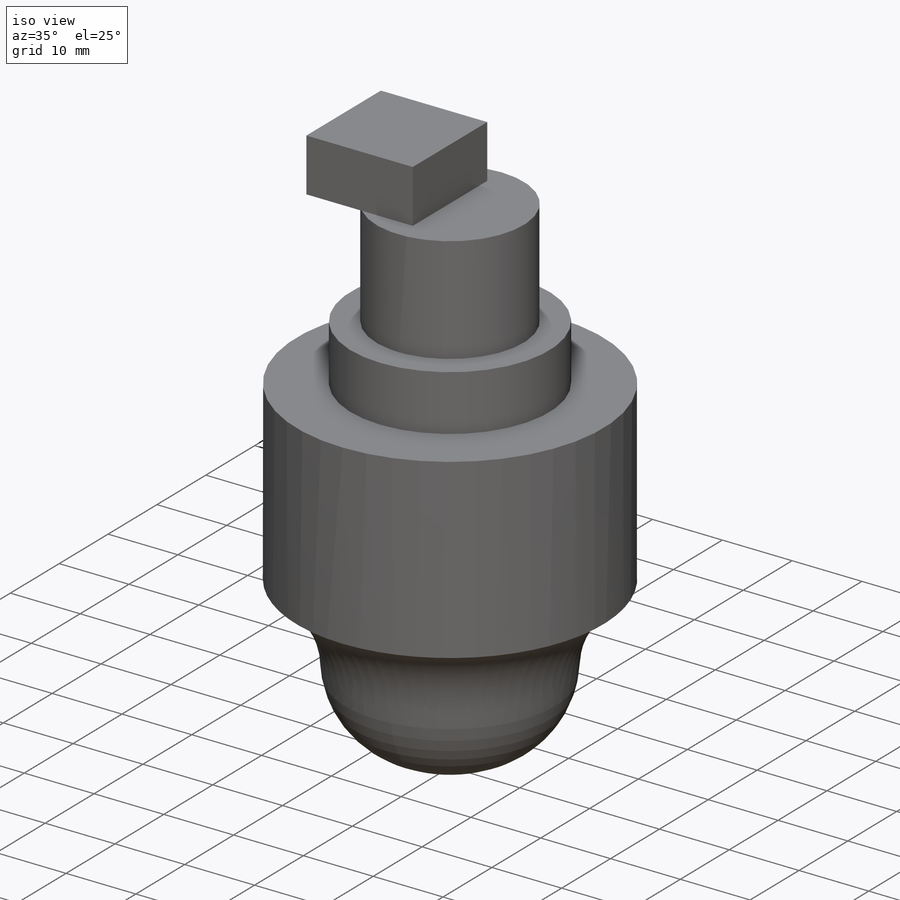
[diagram: iso view]
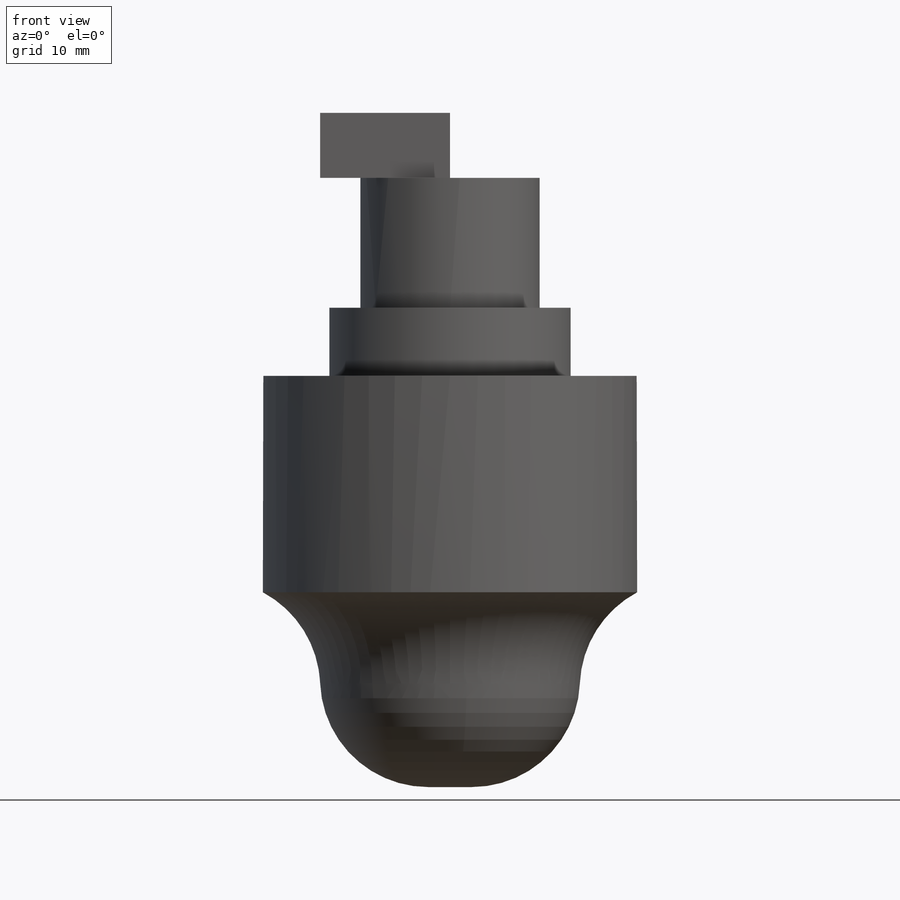
[diagram: front view]
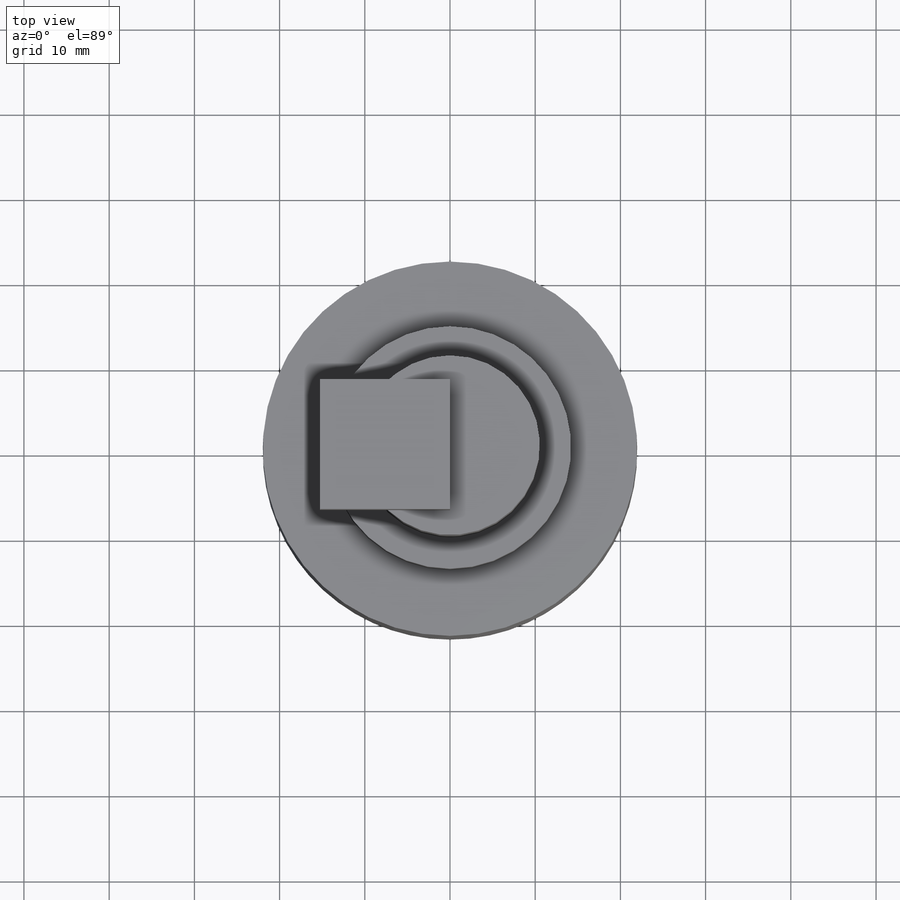
[diagram: top view]
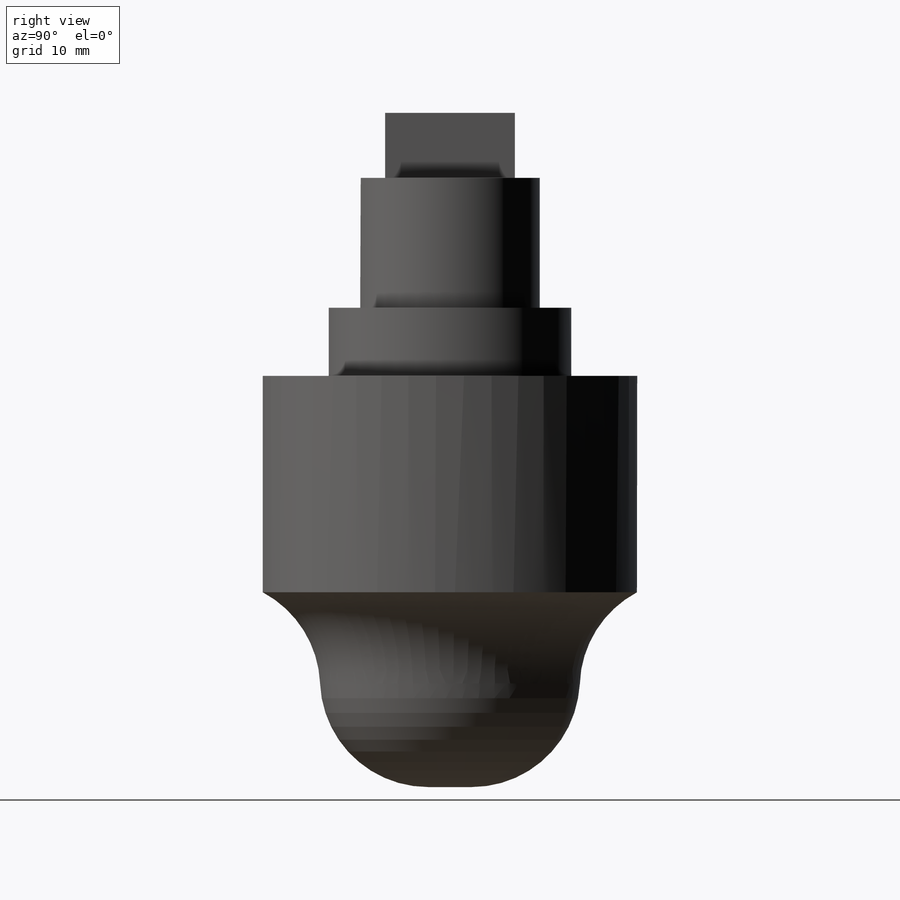
[diagram: right view]
SOLIDWORKS PART (.sldprt)
format: sldprt  version: not decoded by parser v0  size: 196,608 bytes
history: native  units: mm
features: sketch x5, extrude x5, fillet x2, material x1 (+13 scaffold rows collapsed)
feature tree (26):
  scaffold x13  (default folders/planes/origin — collapsed)
  material  "Material <not specified>"
  sketch  "Sketch1"  dims[D1=43.942mm]
  extrude  "Boss-Extrude1"  Depth=25.4mm
  sketch  "Sketch2"  dims[D1=28.448mm]
  extrude  "Boss-Extrude2"  Depth=8.001mm
  sketch  "Sketch3"  dims[D1=21.082mm]
  extrude  "Boss-Extrude3"  Depth=15.24mm
  sketch  "Sketch4"  dims[D1=7.62mm D2=15.24mm D3=7.62mm]
  extrude  "Boss-Extrude4"  Depth=7.62mm
  sketch  "Sketch5"  dims[D1=30.48mm]
  extrude  "Boss-Extrude5"  Depth=22.86mm
  fillet  "Fillet1"  Radius=12.7mm
  fillet  "Fillet2"  Radius=12.7mm
decode coverage: 12 of 12 modeling features carry decoded parameters
note: suppression state not decoded; provenance and decode notes live in map.json
